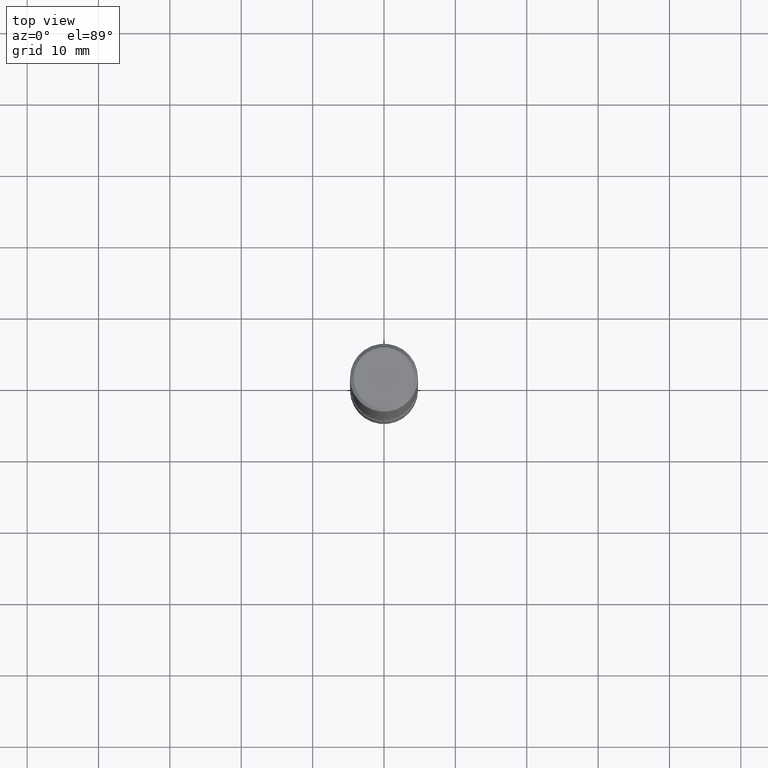
[diagram: clean part render]
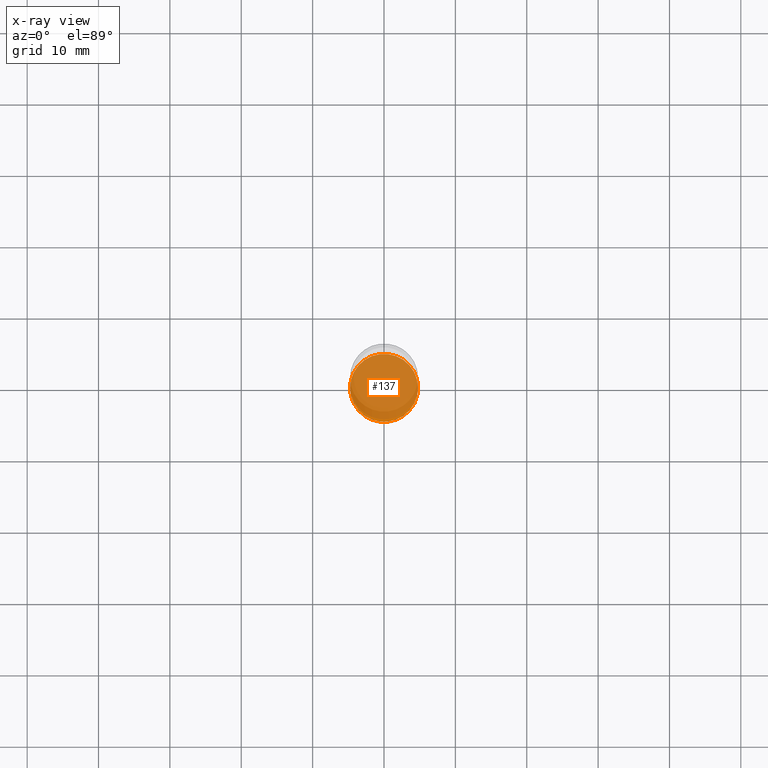
[diagram: x-ray — body ghosted, one internal face saturated and labeled with its STEP entity id]
A machine part, top view, then the same camera in x-ray: the body is ghosted and one INTERNAL B-rep face — a face not visible from any outside direction — is saturated and labeled: STEP entity #137.
In plain terms, the highlighted planar face has unit normal (0, -0, -1).
Its self-contained STEP definition (entity closure, byte-faithful):
#2 = EDGE_LOOP ( 'NONE', ( #504, #130 ) ) ;
#5 = VERTEX_POINT ( 'NONE', #184 ) ;
#67 = DIRECTION ( 'NONE',  ( -1.000000000000000000, 6.982962677686265922E-15, -4.876176775795935793E-29 ) ) ;
#86 = DIRECTION ( 'NONE',  ( 1.000000000000000000, -6.982962677686269866E-15, 0.000000000000000000 ) ) ;
#112 = EDGE_CURVE ( 'NONE', #5, #122, #531, .T. ) ;
#122 = VERTEX_POINT ( 'NONE', #401 ) ;
#130 = ORIENTED_EDGE ( 'NONE', *, *, #112, .T. ) ;
#137 = ADVANCED_FACE ( 'NONE', ( #410 ), #199, .F. ) ;
#151 = AXIS2_PLACEMENT_3D ( 'NONE', #373, #241, #67 ) ;
#172 = DIRECTION ( 'NONE',  ( -2.445468806185136597E-29, 3.491481338843145583E-15, 1.000000000000000000 ) ) ;
#184 = CARTESIAN_POINT ( 'NONE',  ( -0.1875000000000000833, -1.121960778359092137E-14, -3.250000000000000444 ) ) ;
#186 = DIRECTION ( 'NONE',  ( -2.445468806185136597E-29, 3.491481338843145583E-15, 1.000000000000000000 ) ) ;
#189 = CARTESIAN_POINT ( 'NONE',  ( 7.947773620101696182E-29, -1.134731435124022600E-14, -3.250000000000000444 ) ) ;
#199 = PLANE ( 'NONE',  #151 ) ;
#210 = CARTESIAN_POINT ( 'NONE',  ( 7.947773620101696182E-29, -1.134731435124022600E-14, -3.250000000000000444 ) ) ;
#227 = DIRECTION ( 'NONE',  ( 1.000000000000000000, -6.982962677686269866E-15, 0.000000000000000000 ) ) ;
#241 = DIRECTION ( 'NONE',  ( 2.438088387897960049E-29, -3.491481338843145188E-15, -1.000000000000000000 ) ) ;
#319 = EDGE_CURVE ( 'NONE', #122, #5, #394, .T. ) ;
#373 = CARTESIAN_POINT ( 'NONE',  ( 7.947773620101696182E-29, -1.134731435124022600E-14, -3.250000000000000444 ) ) ;
#394 = CIRCLE ( 'NONE', #413, 0.1875000000000000833 ) ;
#401 = CARTESIAN_POINT ( 'NONE',  ( 0.1875000000000000833, -1.265661985330640259E-14, -3.250000000000000444 ) ) ;
#410 = FACE_OUTER_BOUND ( 'NONE', #2, .T. ) ;
#413 = AXIS2_PLACEMENT_3D ( 'NONE', #210, #172, #86 ) ;
#489 = AXIS2_PLACEMENT_3D ( 'NONE', #189, #186, #227 ) ;
#504 = ORIENTED_EDGE ( 'NONE', *, *, #319, .T. ) ;
#531 = CIRCLE ( 'NONE', #489, 0.1875000000000000833 ) ;